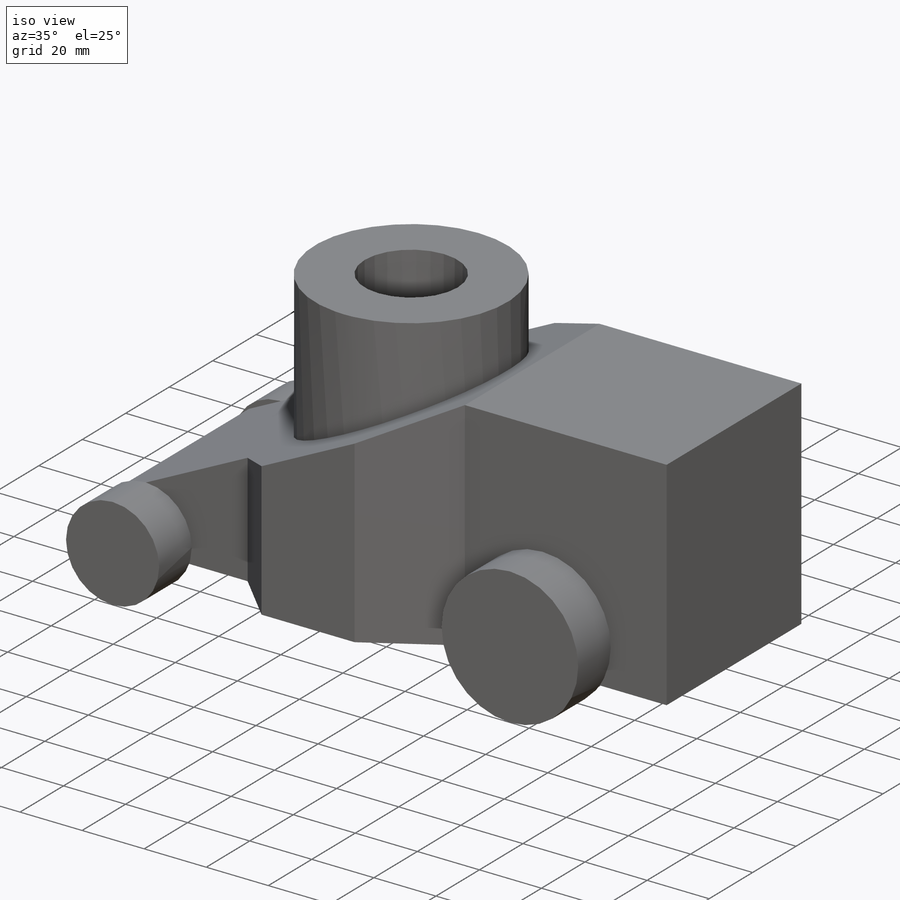
[diagram: iso view]
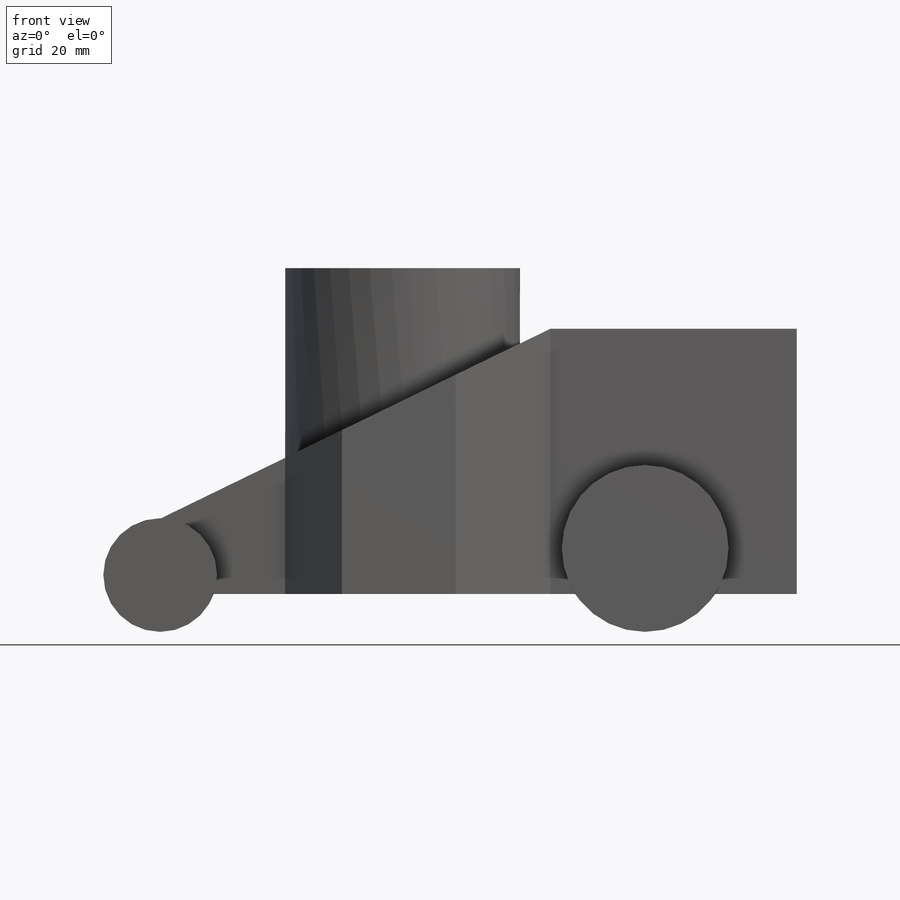
[diagram: front view]
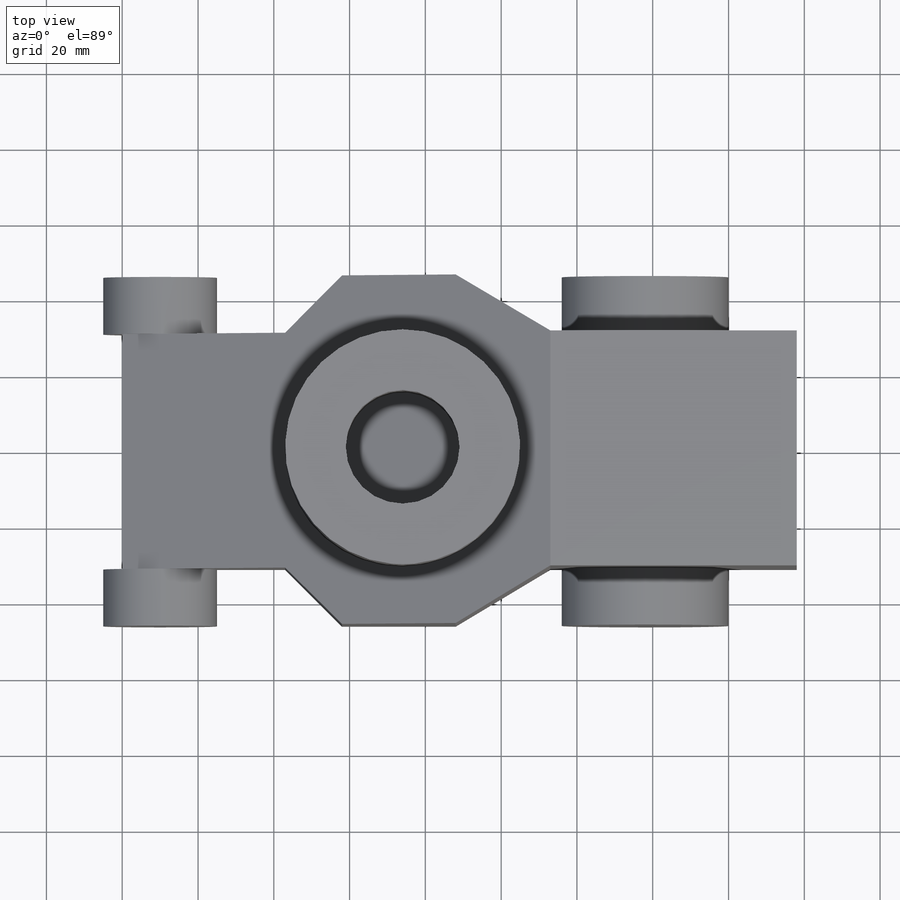
[diagram: top view]
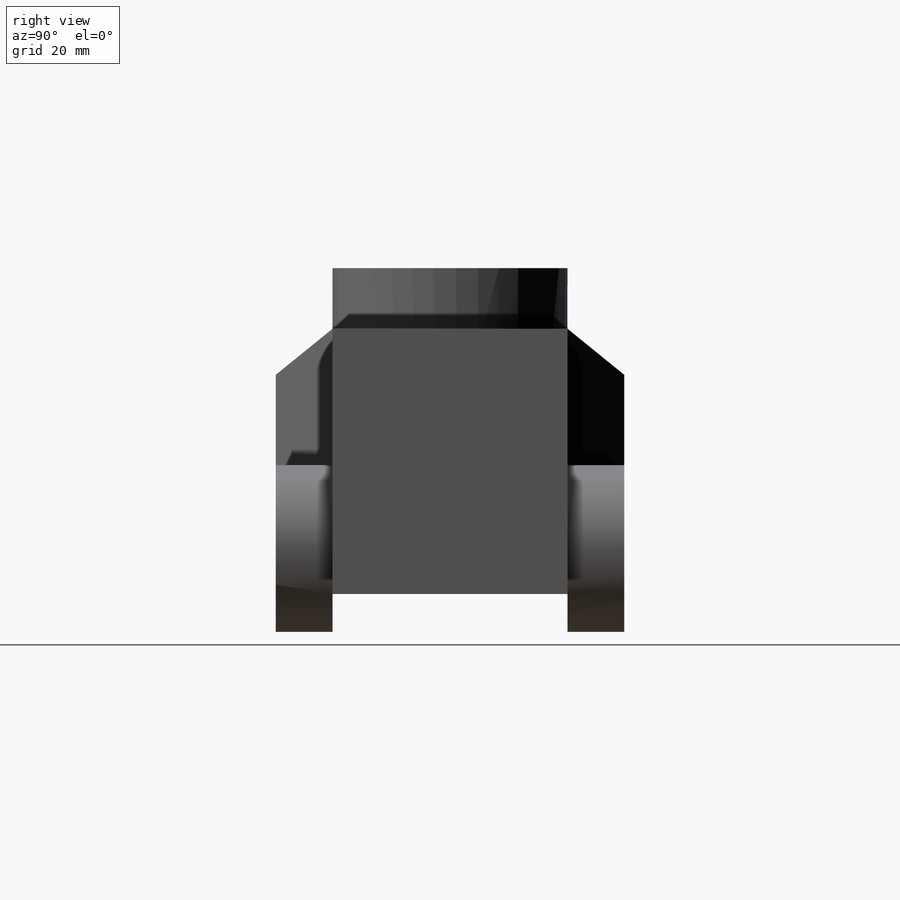
[diagram: right view]
SOLIDWORKS PART (.sldprt)
format: sldprt  version: not decoded by parser v0  size: 206,336 bytes
history: native  units: mm
features: sketch x5, extrude x3, cut_extrude x2, material x1, mirror x1 (+16 scaffold rows collapsed)
feature tree (28):
  scaffold x16  (default folders/planes/origin — collapsed)
  material  "Material <not specified>"
  sketch  "Sketch1"  dims[D1=65.0mm D2=25.0mm D3=30.0mm D4=15.0mm D5=43.0mm D6=31.0mm D7=31.0mm D8=15.0mm]
  extrude  "Extrude1"  Depth=70mm
  sketch  "Sketch2"  dims[D1=15.0mm]
  cut_extrude  "Extrude2"  Depth=90mm
  sketch  "Sketch3"  dims[D1=62.0mm]
  extrude  "Extrude3"  Depth=86mm
  sketch  "Sketch4"  dims[D1=30.0mm]
  cut_extrude  "Extrude4"  [1 undecoded]
  sketch  "Sketch5"  dims[c1.D2=30.0mm c1.D3=44.0mm c1.D4=30.0mm c1.D5=44.0mm c1.D1=10.0mm c2.D4=10.0mm c2.D5=40.0mm]
  extrude  "Extrude5"  Depth=15mm
  mirror  "Mirror1"
decode coverage: 9 of 11 modeling features carry decoded parameters
note: 1 parameter value undecoded
note: suppression state not decoded; provenance and decode notes live in map.json
